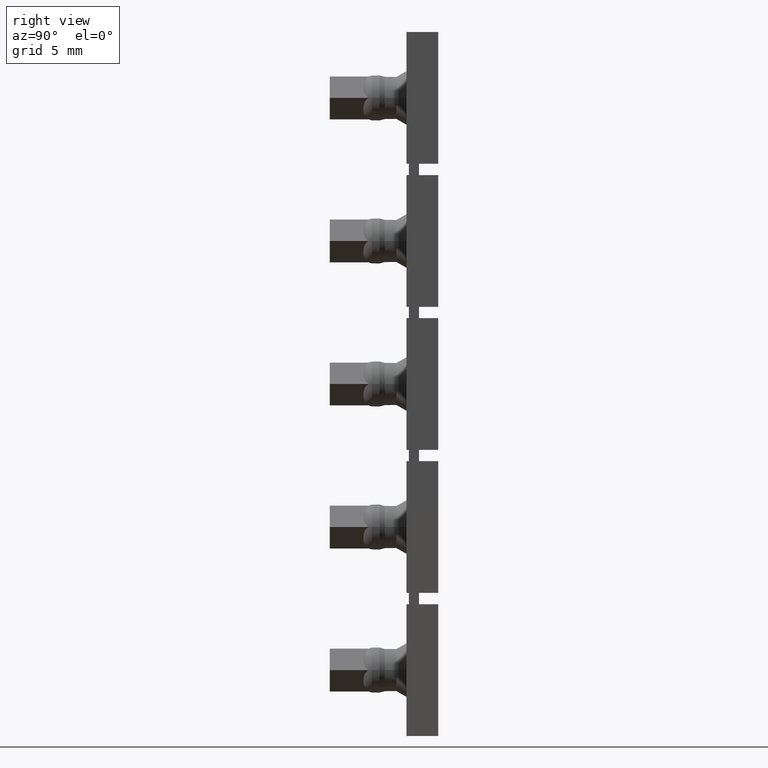
[diagram: clean part render]
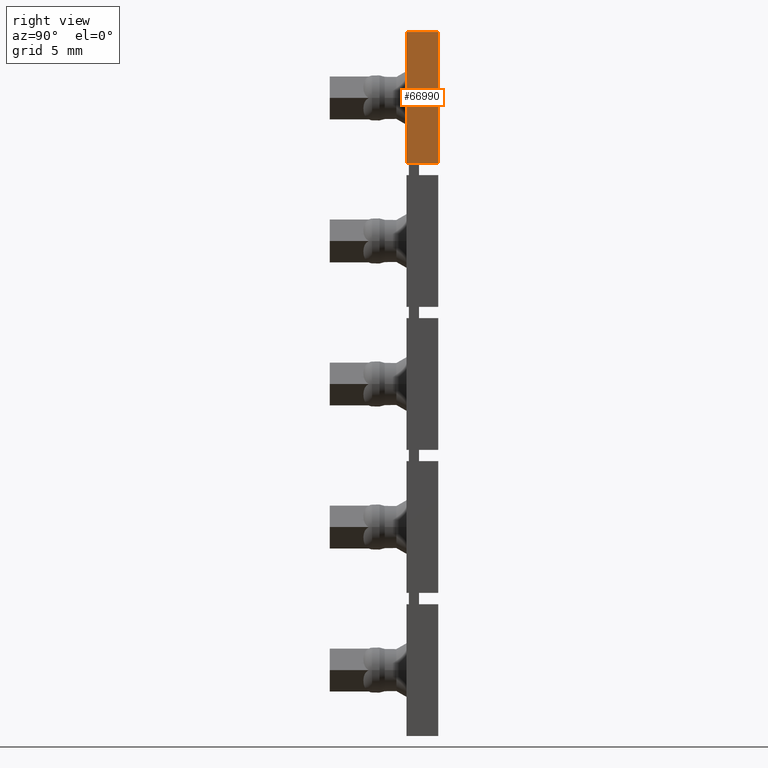
[diagram: same view with one face highlighted and labeled with its STEP entity id]
A machine part, right view. The second image highlights one B-rep face of the part: STEP entity #66990.
In plain terms, the highlighted planar face has unit normal (1, 0, 0).
Its self-contained STEP definition (entity closure, byte-faithful):
#47640=CARTESIAN_POINT('',(-7.22161674200213,42.8120767804012,
51.0749999972799));
#47650=DIRECTION('',(-4.37360856649983E-12,-1.,0.));
#47660=VECTOR('',#47650,1.);
#47670=LINE('',#47640,#47660);
#47680=CARTESIAN_POINT('',(-7.22161674199229,45.0620767804012,
51.0749999972799));
#47690=VERTEX_POINT('',#47680);
#47700=CARTESIAN_POINT('',(-7.22161674200213,42.8120767804012,
51.0749999972799));
#47710=VERTEX_POINT('',#47700);
#47720=EDGE_CURVE('',#47690,#47710,#47670,.T.);
#48570=CARTESIAN_POINT('',(-7.22161674200213,42.8120767804012,
60.4249999972799));
#48580=VERTEX_POINT('',#48570);
#48610=CARTESIAN_POINT('',(-7.22161674200213,42.8120767804012,
7.57955973337427));
#48620=DIRECTION('',(0.,0.,-1.));
#48630=VECTOR('',#48620,1.);
#48640=LINE('',#48610,#48630);
#48650=EDGE_CURVE('',#48580,#47710,#48640,.T.);
#62300=CARTESIAN_POINT('',(-7.22161674199229,45.0620767804012,
60.4249999972799));
#62310=VERTEX_POINT('',#62300);
#62340=CARTESIAN_POINT('',(-7.22161674200213,42.8120767804012,
60.4249999972799));
#62350=DIRECTION('',(-4.37360856649983E-12,-1.,0.));
#62360=VECTOR('',#62350,1.);
#62370=LINE('',#62340,#62360);
#62380=EDGE_CURVE('',#62310,#48580,#62370,.T.);
#65350=CARTESIAN_POINT('',(-7.22161674199229,45.0620767804012,
7.57955973337427));
#65360=DIRECTION('',(0.,0.,-1.));
#65370=VECTOR('',#65360,1.);
#65380=LINE('',#65350,#65370);
#65390=EDGE_CURVE('',#62310,#47690,#65380,.T.);
#66880=CARTESIAN_POINT('',(-7.22161674200213,42.8120767804012,
52.2499999972799));
#66890=DIRECTION('',(1.,-4.37360856649983E-12,0.));
#66900=DIRECTION('',(0.,0.,1.));
#66910=AXIS2_PLACEMENT_3D('',#66880,#66890,#66900);
#66920=PLANE('',#66910);
#66930=ORIENTED_EDGE('',*,*,#48650,.T.);
#66940=ORIENTED_EDGE('',*,*,#62380,.T.);
#66950=ORIENTED_EDGE('',*,*,#65390,.F.);
#66960=ORIENTED_EDGE('',*,*,#47720,.F.);
#66970=EDGE_LOOP('',(#66960,#66950,#66940,#66930));
#66980=FACE_OUTER_BOUND('',#66970,.T.);
#66990=ADVANCED_FACE('',(#66980),#66920,.T.);